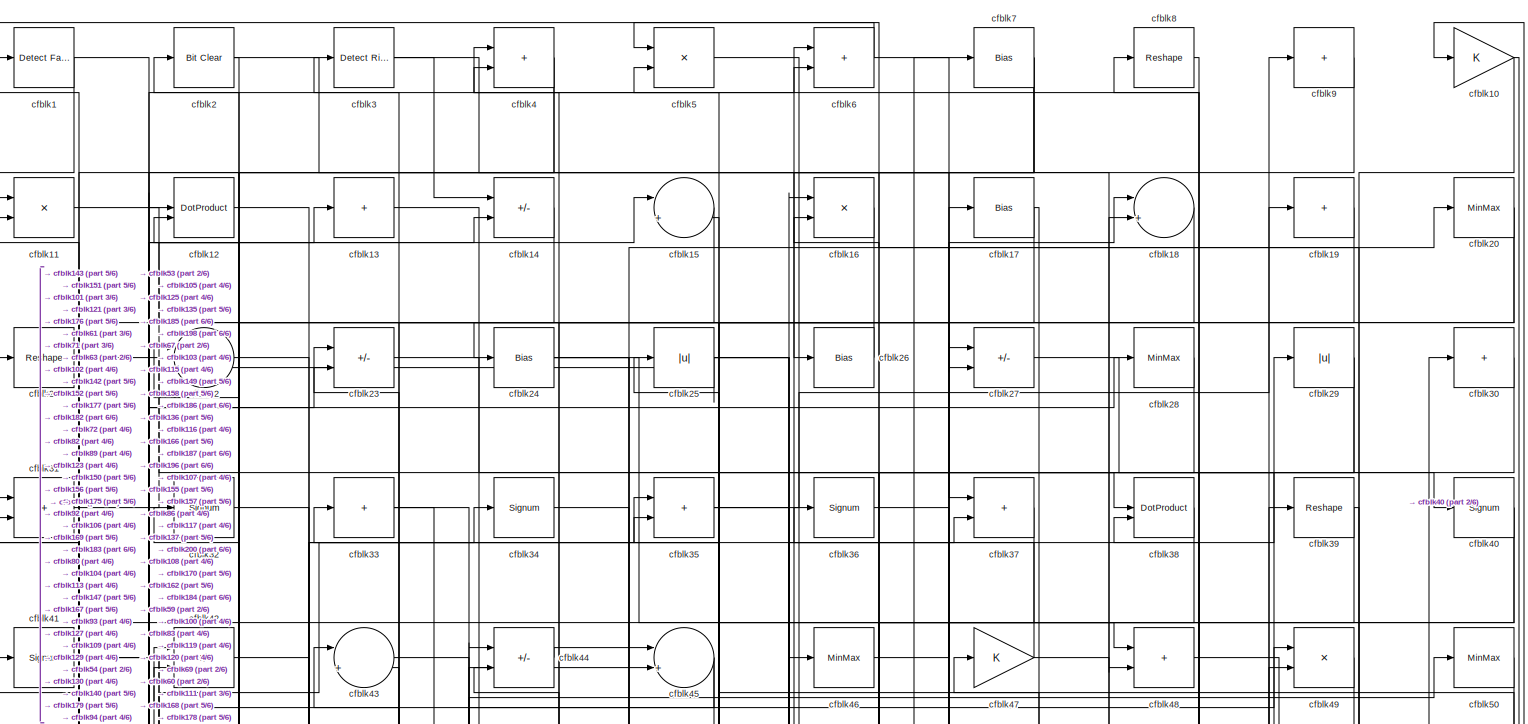
[diagram: root canvas - part 1/6, full width, top band]
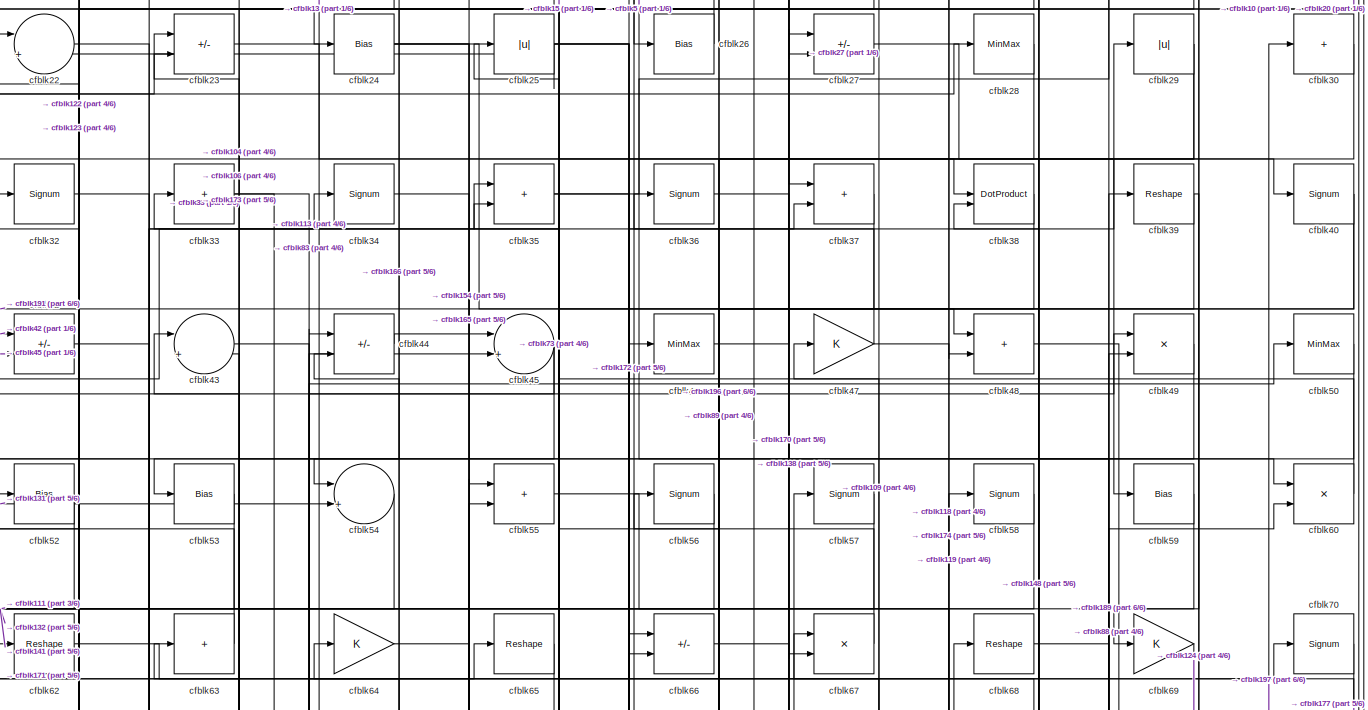
[diagram: root canvas - part 2/6, full width, top band]
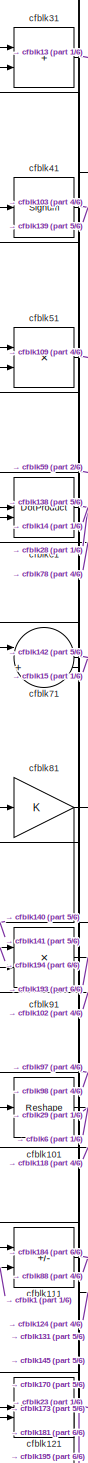
[diagram: root canvas - part 3/6, middle left region]
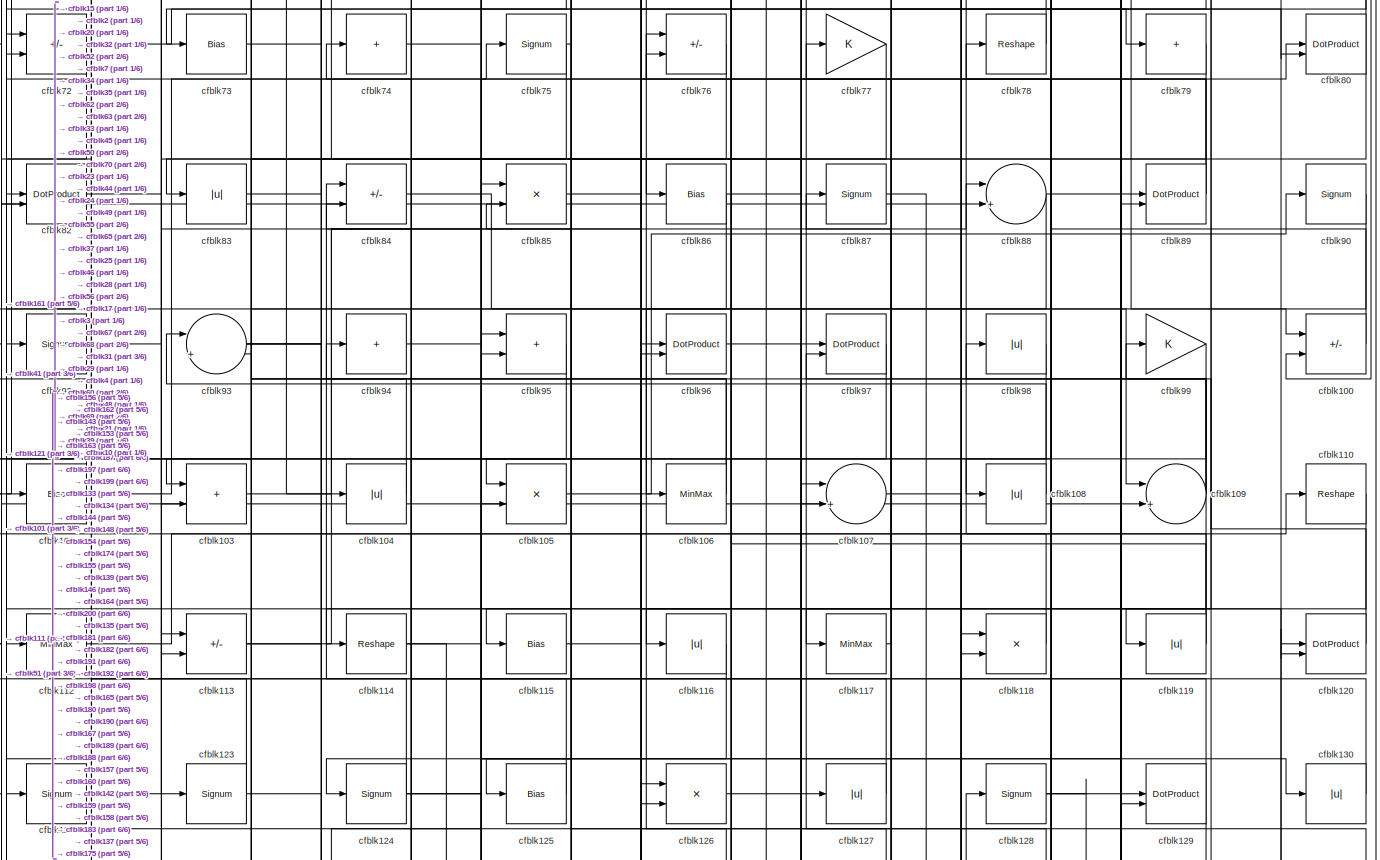
[diagram: root canvas - part 4/6, full width, middle band]
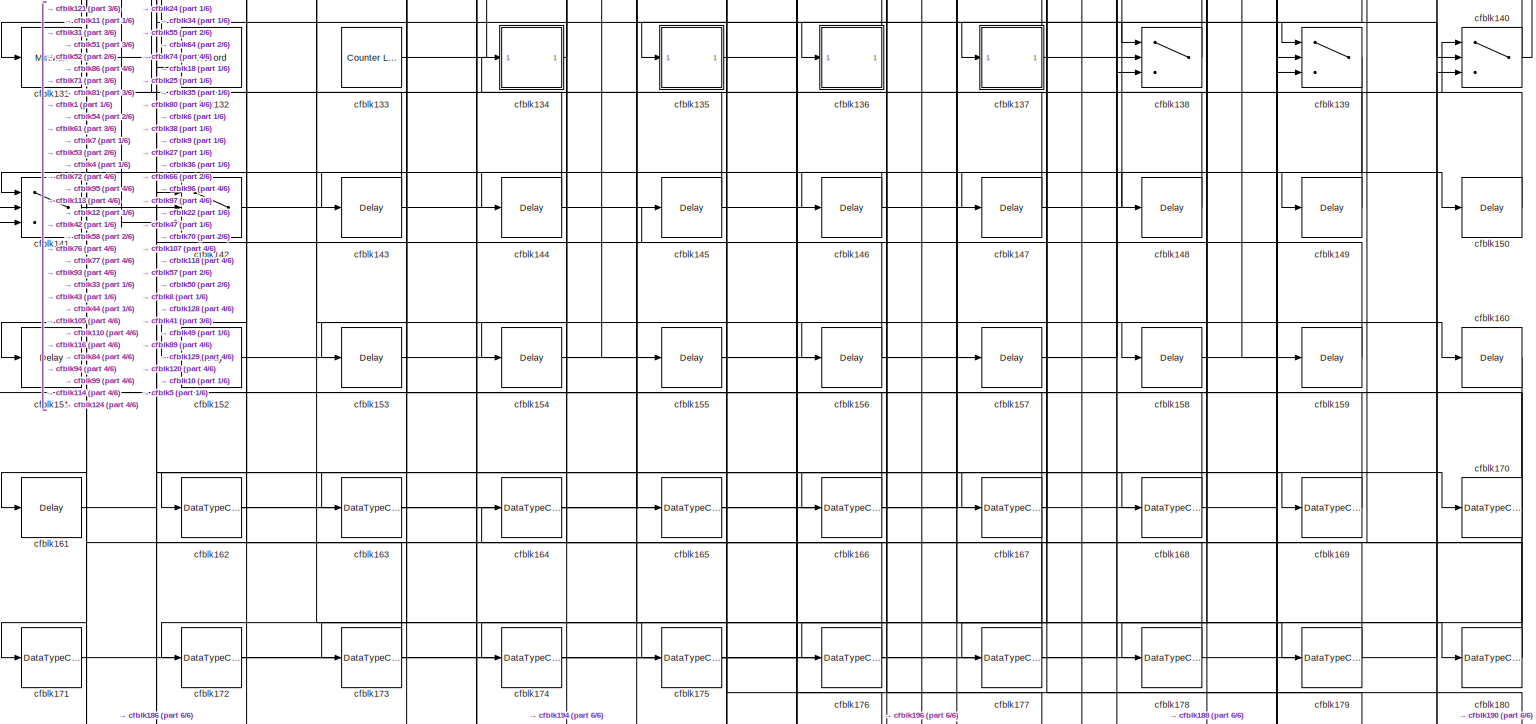
[diagram: root canvas - part 5/6, full width, bottom band]
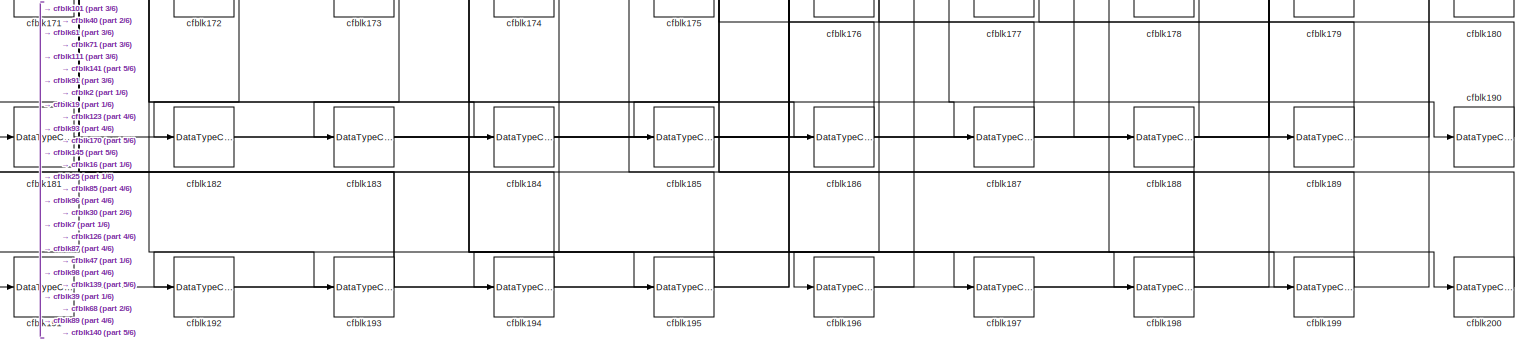
[diagram: root canvas - part 6/6, full width, bottom band]
MODEL slx_8d43ca6d4f13
KIND model
CONFIG AbsTol = auto
CONFIG EnableMultiTasking = off
CONFIG FixedStep = auto
CONFIG MaxStep = auto
CONFIG MinStep = auto
CONFIG RelTol = 1e-3
CONFIG SampleTimeConstraint = Unconstrained
CONFIG SolverName = VariableStepAuto
CONFIG StartTime = 0.0
CONFIG StopTime = 10.0
BLOCK [Reference] cfblk1  REF=hdlsllib/Logic and Bit
Operations/Detect Fall
Negative
  SourceBlock = hdlsllib/Logic and Bit\nOperations/Detect Fall\nNegative
  SourceType = Detect Fall Negative
BLOCK [Gain] cfblk10
BLOCK [Sum] cfblk100
  IconShape = rectangular
  Inputs = +-
BLOCK [Reshape] cfblk101
BLOCK [Bias] cfblk102
  Bias = 0.0
  SaturateOnIntegerOverflow = off
BLOCK [Sum] cfblk103
  IconShape = rectangular
BLOCK [Abs] cfblk104
  SaturateOnIntegerOverflow = off
BLOCK [Product] cfblk105
  Inputs = */
  RndMeth = Zero
  SaturateOnIntegerOverflow = on
BLOCK [MinMax] cfblk106
BLOCK [Sum] cfblk107
  Inputs = |++
BLOCK [Abs] cfblk108
  SaturateOnIntegerOverflow = off
BLOCK [Sum] cfblk109
  Inputs = |++
BLOCK [Product] cfblk11
  Inputs = */
  RndMeth = Zero
  SaturateOnIntegerOverflow = on
BLOCK [Reshape] cfblk110
BLOCK [Sum] cfblk111
  IconShape = rectangular
  Inputs = +-
BLOCK [MinMax] cfblk112
BLOCK [Sum] cfblk113
  IconShape = rectangular
  Inputs = +-
BLOCK [Reshape] cfblk114
BLOCK [Bias] cfblk115
  Bias = 0.0
  SaturateOnIntegerOverflow = off
BLOCK [Abs] cfblk116
  SaturateOnIntegerOverflow = off
BLOCK [MinMax] cfblk117
BLOCK [Product] cfblk118
  Inputs = */
  RndMeth = Zero
  SaturateOnIntegerOverflow = on
BLOCK [Abs] cfblk119
  SaturateOnIntegerOverflow = off
BLOCK [DotProduct] cfblk12
  OutDataTypeStr = Inherit: Inherit via internal rule
BLOCK [DotProduct] cfblk120
  OutDataTypeStr = Inherit: Inherit via internal rule
BLOCK [DotProduct] cfblk121
  OutDataTypeStr = Inherit: Inherit via internal rule
BLOCK [Signum] cfblk122
BLOCK [Signum] cfblk123
BLOCK [Signum] cfblk124
BLOCK [Bias] cfblk125
  Bias = 0.0
  SaturateOnIntegerOverflow = off
BLOCK [Product] cfblk126
  Inputs = */
  RndMeth = Zero
  SaturateOnIntegerOverflow = on
BLOCK [Abs] cfblk127
  SaturateOnIntegerOverflow = off
BLOCK [Signum] cfblk128
BLOCK [DotProduct] cfblk129
  OutDataTypeStr = Inherit: Inherit via internal rule
BLOCK [Sum] cfblk13
  IconShape = rectangular
  Inputs = +
BLOCK [Abs] cfblk130
  SaturateOnIntegerOverflow = off
BLOCK [MinMax] cfblk131
BLOCK [Record] cfblk132
  CompatibilityTag = XY
  FileSettingsInternal = {"entries":[{"content":{"excelSettings":{"content":{},"type":"Streamout.ExcelSettings"}},"type":"Streamout.FileSettingStorage","uuid":""}],"packageUris":["http:\/\/schema.mathworks.com\/mf0\/streamout_blocks\/R2020a"],"version":"1.0"}
  Layout = [1 1]
  SignalsInternal = {"entries":[{"content":{"signals":[{"content":{"blockPath":[],"dimensions":[1],"domain":"","lineColor":"#a2142f","plots":[1],"port":1,"signalID":3990,"signalName":"XY Graph:1"},"type":"RecordBlkView.Signal","uuid":""},{"content":{"blockPath":[],"dimensions":[1],"domain":"","lineColor":"#139fff","plots":[1],"port":2,"signalID":3993,"signalName":"XY Graph:2"},"type":"RecordBlkView.Signal","uuid":""}...<+146ch>
  VisualizationBindings = {"xyplotplugin":{"info":[{"series":[{"bindingParametersList":[{"parameter":"X-Axis","signalID":3990,"signalName":"XY Graph:1"},{"parameter":"Y-Axis","signalID":3993,"signalName":"XY Graph:2"}],"seriesID":61873}],"subplotID":1}]}}
  st = -1
BLOCK [Reference] cfblk133  REF=hdlsllib/Sources/Counter
Limited
  SourceBlock = hdlsllib/Sources/Counter\nLimited
  SourceType = Counter Limited
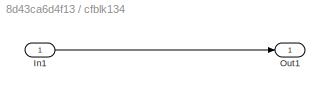
BLOCK [SubSystem] cfblk134
  LibrarySourceBlock = hdlsllib/Ports &\nSubsystems/Subsystem
BLOCK [Inport] cfblk134/In1
BLOCK [Outport] cfblk134/Out1
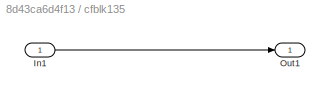
BLOCK [SubSystem] cfblk135
  LibrarySourceBlock = hdlsllib/Ports &\nSubsystems/Subsystem
BLOCK [Inport] cfblk135/In1
BLOCK [Outport] cfblk135/Out1
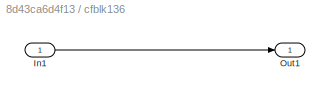
BLOCK [SubSystem] cfblk136
  LibrarySourceBlock = hdlsllib/Ports &\nSubsystems/Subsystem
BLOCK [Inport] cfblk136/In1
BLOCK [Outport] cfblk136/Out1
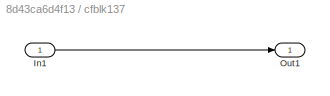
BLOCK [SubSystem] cfblk137
  LibrarySourceBlock = hdlsllib/Ports &\nSubsystems/Subsystem
BLOCK [Inport] cfblk137/In1
BLOCK [Outport] cfblk137/Out1
BLOCK [Switch] cfblk138
  InputSameDT = off
  SaturateOnIntegerOverflow = off
BLOCK [Switch] cfblk139
  InputSameDT = off
  SaturateOnIntegerOverflow = off
BLOCK [Sum] cfblk14
  IconShape = rectangular
  Inputs = +-
BLOCK [Switch] cfblk140
  InputSameDT = off
  SaturateOnIntegerOverflow = off
BLOCK [Switch] cfblk141
  InputSameDT = off
  SaturateOnIntegerOverflow = off
BLOCK [Switch] cfblk142
  InputSameDT = off
  SaturateOnIntegerOverflow = off
BLOCK [Delay] cfblk143
  InputPortMap = u0
  SampleTime = 1
BLOCK [Delay] cfblk144
  InputPortMap = u0
  SampleTime = 1
BLOCK [Delay] cfblk145
  InputPortMap = u0
  SampleTime = 1
BLOCK [Delay] cfblk146
  InputPortMap = u0
  SampleTime = 1
BLOCK [Delay] cfblk147
  InputPortMap = u0
  SampleTime = 1
BLOCK [Delay] cfblk148
  InputPortMap = u0
  SampleTime = 1
BLOCK [Delay] cfblk149
  InputPortMap = u0
  SampleTime = 1
BLOCK [Sum] cfblk15
  Inputs = |++
BLOCK [Delay] cfblk150
  InputPortMap = u0
  SampleTime = 1
BLOCK [Delay] cfblk151
  InputPortMap = u0
  SampleTime = 1
BLOCK [Delay] cfblk152
  InputPortMap = u0
  SampleTime = 1
BLOCK [Delay] cfblk153
  InputPortMap = u0
  SampleTime = 1
BLOCK [Delay] cfblk154
  InputPortMap = u0
  SampleTime = 1
BLOCK [Delay] cfblk155
  InputPortMap = u0
  SampleTime = 1
BLOCK [Delay] cfblk156
  InputPortMap = u0
  SampleTime = 1
BLOCK [Delay] cfblk157
  InputPortMap = u0
  SampleTime = 1
BLOCK [Delay] cfblk158
  InputPortMap = u0
  SampleTime = 1
BLOCK [Delay] cfblk159
  InputPortMap = u0
  SampleTime = 1
BLOCK [Product] cfblk16
  Inputs = */
  RndMeth = Zero
  SaturateOnIntegerOverflow = on
BLOCK [Delay] cfblk160
  InputPortMap = u0
  SampleTime = 1
BLOCK [Delay] cfblk161
  InputPortMap = u0
  SampleTime = 1
BLOCK [DataTypeConversion] cfblk162
  RndMeth = Floor
  SaturateOnIntegerOverflow = off
BLOCK [DataTypeConversion] cfblk163
  OutDataTypeStr = uint8
  RndMeth = Floor
  SaturateOnIntegerOverflow = off
BLOCK [DataTypeConversion] cfblk164
  OutDataTypeStr = uint8
  RndMeth = Floor
  SaturateOnIntegerOverflow = off
BLOCK [DataTypeConversion] cfblk165
  OutDataTypeStr = uint8
  RndMeth = Floor
  SaturateOnIntegerOverflow = off
BLOCK [DataTypeConversion] cfblk166
  OutDataTypeStr = uint8
  RndMeth = Floor
  SaturateOnIntegerOverflow = off
BLOCK [DataTypeConversion] cfblk167
  RndMeth = Floor
  SaturateOnIntegerOverflow = off
BLOCK [DataTypeConversion] cfblk168
  OutDataTypeStr = uint8
  RndMeth = Floor
  SaturateOnIntegerOverflow = off
BLOCK [DataTypeConversion] cfblk169
  OutDataTypeStr = uint8
  RndMeth = Floor
  SaturateOnIntegerOverflow = off
BLOCK [Bias] cfblk17
  Bias = 0.0
  SaturateOnIntegerOverflow = off
BLOCK [DataTypeConversion] cfblk170
  RndMeth = Floor
  SaturateOnIntegerOverflow = off
BLOCK [DataTypeConversion] cfblk171
  OutDataTypeStr = uint8
  RndMeth = Floor
  SaturateOnIntegerOverflow = off
BLOCK [DataTypeConversion] cfblk172
  OutDataTypeStr = uint8
  RndMeth = Floor
  SaturateOnIntegerOverflow = off
BLOCK [DataTypeConversion] cfblk173
  OutDataTypeStr = uint8
  RndMeth = Floor
  SaturateOnIntegerOverflow = off
BLOCK [DataTypeConversion] cfblk174
  OutDataTypeStr = uint8
  RndMeth = Floor
  SaturateOnIntegerOverflow = off
BLOCK [DataTypeConversion] cfblk175
  OutDataTypeStr = uint8
  RndMeth = Floor
  SaturateOnIntegerOverflow = off
BLOCK [DataTypeConversion] cfblk176
  OutDataTypeStr = uint8
  RndMeth = Floor
  SaturateOnIntegerOverflow = off
BLOCK [DataTypeConversion] cfblk177
  OutDataTypeStr = uint8
  RndMeth = Floor
  SaturateOnIntegerOverflow = off
BLOCK [DataTypeConversion] cfblk178
  OutDataTypeStr = uint8
  RndMeth = Floor
  SaturateOnIntegerOverflow = off
BLOCK [DataTypeConversion] cfblk179
  OutDataTypeStr = uint8
  RndMeth = Floor
  SaturateOnIntegerOverflow = off
BLOCK [Sum] cfblk18
  Inputs = |++
BLOCK [DataTypeConversion] cfblk180
  RndMeth = Floor
  SaturateOnIntegerOverflow = off
BLOCK [DataTypeConversion] cfblk181
  OutDataTypeStr = uint8
  RndMeth = Floor
  SaturateOnIntegerOverflow = off
BLOCK [DataTypeConversion] cfblk182
  OutDataTypeStr = uint8
  RndMeth = Floor
  SaturateOnIntegerOverflow = off
BLOCK [DataTypeConversion] cfblk183
  RndMeth = Floor
  SaturateOnIntegerOverflow = off
BLOCK [DataTypeConversion] cfblk184
  OutDataTypeStr = uint8
  RndMeth = Floor
  SaturateOnIntegerOverflow = off
BLOCK [DataTypeConversion] cfblk185
  OutDataTypeStr = uint8
  RndMeth = Floor
  SaturateOnIntegerOverflow = off
BLOCK [DataTypeConversion] cfblk186
  OutDataTypeStr = uint8
  RndMeth = Floor
  SaturateOnIntegerOverflow = off
BLOCK [DataTypeConversion] cfblk187
  OutDataTypeStr = uint8
  RndMeth = Floor
  SaturateOnIntegerOverflow = off
BLOCK [DataTypeConversion] cfblk188
  RndMeth = Floor
  SaturateOnIntegerOverflow = off
BLOCK [DataTypeConversion] cfblk189
  OutDataTypeStr = uint8
  RndMeth = Floor
  SaturateOnIntegerOverflow = off
BLOCK [Sum] cfblk19
  IconShape = rectangular
  Inputs = +
BLOCK [DataTypeConversion] cfblk190
  OutDataTypeStr = uint8
  RndMeth = Floor
  SaturateOnIntegerOverflow = off
BLOCK [DataTypeConversion] cfblk191
  OutDataTypeStr = uint8
  RndMeth = Floor
  SaturateOnIntegerOverflow = off
BLOCK [DataTypeConversion] cfblk192
  OutDataTypeStr = uint8
  RndMeth = Floor
  SaturateOnIntegerOverflow = off
BLOCK [DataTypeConversion] cfblk193
  RndMeth = Floor
  SaturateOnIntegerOverflow = off
BLOCK [DataTypeConversion] cfblk194
  OutDataTypeStr = uint8
  RndMeth = Floor
  SaturateOnIntegerOverflow = off
BLOCK [DataTypeConversion] cfblk195
  OutDataTypeStr = uint8
  RndMeth = Floor
  SaturateOnIntegerOverflow = off
BLOCK [DataTypeConversion] cfblk196
  RndMeth = Floor
  SaturateOnIntegerOverflow = off
BLOCK [DataTypeConversion] cfblk197
  OutDataTypeStr = uint8
  RndMeth = Floor
  SaturateOnIntegerOverflow = off
BLOCK [DataTypeConversion] cfblk198
  OutDataTypeStr = uint8
  RndMeth = Floor
  SaturateOnIntegerOverflow = off
BLOCK [DataTypeConversion] cfblk199
  OutDataTypeStr = uint8
  RndMeth = Floor
  SaturateOnIntegerOverflow = off
BLOCK [Reference] cfblk2  REF=simulink/Logic and Bit
Operations/Bit Clear
  LibrarySourceBlock = hdlsllib/Logic and Bit\nOperations/Bit Clear
  SourceBlock = simulink/Logic and Bit\nOperations/Bit Clear
  SourceType = Bit Clear
BLOCK [MinMax] cfblk20
BLOCK [DataTypeConversion] cfblk200
  OutDataTypeStr = uint8
  RndMeth = Floor
  SaturateOnIntegerOverflow = off
BLOCK [Reshape] cfblk21
BLOCK [Sum] cfblk22
  Inputs = |++
BLOCK [Sum] cfblk23
  IconShape = rectangular
  Inputs = +-
BLOCK [Bias] cfblk24
  Bias = 0.0
  SaturateOnIntegerOverflow = off
BLOCK [Abs] cfblk25
  SaturateOnIntegerOverflow = off
BLOCK [Bias] cfblk26
  Bias = 0.0
  SaturateOnIntegerOverflow = off
BLOCK [Sum] cfblk27
  IconShape = rectangular
  Inputs = +-
BLOCK [MinMax] cfblk28
BLOCK [Abs] cfblk29
  SaturateOnIntegerOverflow = off
BLOCK [Reference] cfblk3  REF=hdlsllib/Logic and Bit
Operations/Detect Rise
Positive
  SourceBlock = hdlsllib/Logic and Bit\nOperations/Detect Rise\nPositive
  SourceType = Detect Rise Positive
BLOCK [Sum] cfblk30
  IconShape = rectangular
  Inputs = +
BLOCK [Sum] cfblk31
  IconShape = rectangular
BLOCK [Signum] cfblk32
BLOCK [Sum] cfblk33
  IconShape = rectangular
  Inputs = +
BLOCK [Signum] cfblk34
BLOCK [Sum] cfblk35
  IconShape = rectangular
BLOCK [Signum] cfblk36
BLOCK [Sum] cfblk37
  IconShape = rectangular
BLOCK [DotProduct] cfblk38
  OutDataTypeStr = Inherit: Inherit via internal rule
BLOCK [Reshape] cfblk39
BLOCK [Sum] cfblk4
  IconShape = rectangular
BLOCK [Signum] cfblk40
BLOCK [Signum] cfblk41
BLOCK [Sum] cfblk42
  IconShape = rectangular
  Inputs = +-
BLOCK [Sum] cfblk43
  Inputs = |++
BLOCK [Sum] cfblk44
  IconShape = rectangular
  Inputs = +-
BLOCK [Sum] cfblk45
  Inputs = |++
BLOCK [MinMax] cfblk46
BLOCK [Gain] cfblk47
BLOCK [Sum] cfblk48
  IconShape = rectangular
BLOCK [Product] cfblk49
  Inputs = */
  RndMeth = Zero
  SaturateOnIntegerOverflow = on
BLOCK [Product] cfblk5
  Inputs = */
  RndMeth = Zero
  SaturateOnIntegerOverflow = on
BLOCK [MinMax] cfblk50
BLOCK [Product] cfblk51
  Inputs = */
  RndMeth = Zero
  SaturateOnIntegerOverflow = on
BLOCK [Bias] cfblk52
  Bias = 0.0
  SaturateOnIntegerOverflow = off
BLOCK [Bias] cfblk53
  Bias = 0.0
  SaturateOnIntegerOverflow = off
BLOCK [Sum] cfblk54
  Inputs = |++
BLOCK [Sum] cfblk55
  IconShape = rectangular
BLOCK [Signum] cfblk56
BLOCK [Signum] cfblk57
BLOCK [Signum] cfblk58
BLOCK [Bias] cfblk59
  Bias = 0.0
  SaturateOnIntegerOverflow = off
BLOCK [Sum] cfblk6
  IconShape = rectangular
BLOCK [Product] cfblk60
  Inputs = */
  RndMeth = Zero
  SaturateOnIntegerOverflow = on
BLOCK [DotProduct] cfblk61
  OutDataTypeStr = Inherit: Inherit via internal rule
BLOCK [Reshape] cfblk62
BLOCK [Sum] cfblk63
  IconShape = rectangular
  Inputs = +
BLOCK [Gain] cfblk64
BLOCK [Reshape] cfblk65
BLOCK [Sum] cfblk66
  IconShape = rectangular
  Inputs = +-
BLOCK [Product] cfblk67
  Inputs = */
  RndMeth = Zero
  SaturateOnIntegerOverflow = on
BLOCK [Reshape] cfblk68
BLOCK [Gain] cfblk69
BLOCK [Bias] cfblk7
  Bias = 0.0
  SaturateOnIntegerOverflow = off
BLOCK [Signum] cfblk70
BLOCK [Sum] cfblk71
  Inputs = |++
BLOCK [Sum] cfblk72
  IconShape = rectangular
  Inputs = +-
BLOCK [Bias] cfblk73
  Bias = 0.0
  SaturateOnIntegerOverflow = off
BLOCK [Sum] cfblk74
  IconShape = rectangular
  Inputs = +
BLOCK [Signum] cfblk75
BLOCK [Sum] cfblk76
  IconShape = rectangular
  Inputs = +-
BLOCK [Gain] cfblk77
BLOCK [Reshape] cfblk78
BLOCK [Sum] cfblk79
  IconShape = rectangular
  Inputs = +
BLOCK [Reshape] cfblk8
BLOCK [DotProduct] cfblk80
  OutDataTypeStr = Inherit: Inherit via internal rule
BLOCK [Gain] cfblk81
BLOCK [DotProduct] cfblk82
  OutDataTypeStr = Inherit: Inherit via internal rule
BLOCK [Abs] cfblk83
  SaturateOnIntegerOverflow = off
BLOCK [Sum] cfblk84
  IconShape = rectangular
  Inputs = +-
BLOCK [Product] cfblk85
  Inputs = */
  RndMeth = Zero
  SaturateOnIntegerOverflow = on
BLOCK [Bias] cfblk86
  Bias = 0.0
  SaturateOnIntegerOverflow = off
BLOCK [Signum] cfblk87
BLOCK [Sum] cfblk88
  Inputs = |++
BLOCK [DotProduct] cfblk89
  OutDataTypeStr = Inherit: Inherit via internal rule
BLOCK [Sum] cfblk9
  IconShape = rectangular
  Inputs = +
BLOCK [Signum] cfblk90
BLOCK [Product] cfblk91
  Inputs = */
  RndMeth = Zero
  SaturateOnIntegerOverflow = on
BLOCK [Signum] cfblk92
BLOCK [Sum] cfblk93
  Inputs = |++
BLOCK [Sum] cfblk94
  IconShape = rectangular
  Inputs = +
BLOCK [Sum] cfblk95
  IconShape = rectangular
BLOCK [DotProduct] cfblk96
  OutDataTypeStr = Inherit: Inherit via internal rule
BLOCK [DotProduct] cfblk97
  OutDataTypeStr = Inherit: Inherit via internal rule
BLOCK [Abs] cfblk98
  SaturateOnIntegerOverflow = off
BLOCK [Gain] cfblk99
LINE cfblk100:1 -> cfblk4:1
NET cfblk101:1 -> cfblk181:1, cfblk29:1, cfblk6:2
NET cfblk102:1 -> cfblk41:1, cfblk75:1
LINE cfblk103:1 -> cfblk46:1
LINE cfblk104:1 -> cfblk62:1
LINE cfblk105:1 -> cfblk90:1
NET cfblk106:1 -> cfblk3:1, cfblk63:1
LINE cfblk107:1 -> cfblk160:1
LINE cfblk108:1 -> cfblk93:1
NET cfblk109:1 -> cfblk112:1, cfblk44:2, cfblk67:1, cfblk78:1
NET cfblk10:1 -> cfblk100:2, cfblk69:1
LINE cfblk110:1 -> cfblk144:1
NET cfblk111:1 -> cfblk184:1, cfblk88:2
LINE cfblk112:1 -> cfblk110:1
NET cfblk113:1 -> cfblk49:1, cfblk55:1
NET cfblk114:1 -> cfblk129:2, cfblk155:1
LINE cfblk115:1 -> cfblk37:2
LINE cfblk116:1 -> cfblk174:1
LINE cfblk117:1 -> cfblk77:1
LINE cfblk118:1 -> cfblk101:1
NET cfblk119:1 -> cfblk68:1, cfblk76:1
LINE cfblk11:1 -> cfblk27:2
LINE cfblk120:1 -> cfblk21:1
NET cfblk121:1 -> cfblk131:1, cfblk23:2
LINE cfblk122:1 -> cfblk88:1
NET cfblk123:1 -> cfblk187:1, cfblk52:1
NET cfblk124:1 -> cfblk139:1, cfblk51:1, cfblk76:2
LINE cfblk125:1 -> cfblk74:1
LINE cfblk126:1 -> cfblk190:1
LINE cfblk127:1 -> cfblk84:1
NET cfblk128:1 -> cfblk129:1, cfblk159:1
NET cfblk129:1 -> cfblk137:1, cfblk4:2
LINE cfblk12:1 -> cfblk175:1
LINE cfblk130:1 -> cfblk2:1
NET cfblk131:1 -> cfblk31:2, cfblk54:2
LINE cfblk133:1 -> cfblk105:2
LINE cfblk134/In1:1 -> cfblk134/Out1:1
LINE cfblk134:1 -> cfblk94:1
LINE cfblk135/In1:1 -> cfblk135/Out1:1
LINE cfblk135:1 -> cfblk80:1
LINE cfblk136/In1:1 -> cfblk136/Out1:1
LINE cfblk136:1 -> cfblk6:1
LINE cfblk137/In1:1 -> cfblk137/Out1:1
NET cfblk137:1 -> cfblk18:2, cfblk22:1
LINE cfblk138:1 -> cfblk57:1
LINE cfblk139:1 -> cfblk176:1
LINE cfblk13:1 -> cfblk40:1
NET cfblk140:1 -> cfblk10:1, cfblk5:2
LINE cfblk141:1 -> cfblk186:1
LINE cfblk142:1 -> cfblk128:1
LINE cfblk143:1 -> cfblk1:1
LINE cfblk144:1 -> cfblk113:1
LINE cfblk145:1 -> cfblk61:2
LINE cfblk146:1 -> cfblk141:1
LINE cfblk147:1 -> cfblk35:2
LINE cfblk148:1 -> cfblk84:2
LINE cfblk149:1 -> cfblk138:2
LINE cfblk14:1 -> cfblk71:1
LINE cfblk150:1 -> cfblk44:1
LINE cfblk151:1 -> cfblk11:2
LINE cfblk152:1 -> cfblk138:3
LINE cfblk153:1 -> cfblk93:2
LINE cfblk154:1 -> cfblk55:2
LINE cfblk155:1 -> cfblk27:1
LINE cfblk156:1 -> cfblk72:2
LINE cfblk157:1 -> cfblk118:1
LINE cfblk158:1 -> cfblk89:2
LINE cfblk159:1 -> cfblk142:1
LINE cfblk15:1 -> cfblk92:1
LINE cfblk160:1 -> cfblk164:1
LINE cfblk161:1 -> cfblk169:1
NET cfblk162:1 -> cfblk107:1, cfblk49:2
LINE cfblk163:1 -> cfblk95:1
LINE cfblk164:1 -> cfblk95:2
LINE cfblk165:1 -> cfblk97:1
LINE cfblk166:1 -> cfblk64:1
NET cfblk167:1 -> cfblk11:1, cfblk172:1, cfblk97:2
LINE cfblk168:1 -> cfblk43:1
LINE cfblk169:1 -> cfblk43:2
LINE cfblk16:1 -> cfblk185:1
NET cfblk170:1 -> cfblk194:1, cfblk38:2, cfblk51:2
LINE cfblk171:1 -> cfblk66:1
LINE cfblk172:1 -> cfblk66:2
LINE cfblk173:1 -> cfblk81:1
LINE cfblk174:1 -> cfblk58:1
LINE cfblk175:1 -> cfblk120:1
LINE cfblk176:1 -> cfblk12:1
LINE cfblk177:1 -> cfblk12:2
LINE cfblk178:1 -> cfblk47:1
LINE cfblk179:1 -> cfblk8:1
NET cfblk17:1 -> cfblk102:1, cfblk117:1
NET cfblk180:1 -> cfblk134:1, cfblk99:1
LINE cfblk181:1 -> cfblk96:1
LINE cfblk182:1 -> cfblk96:2
NET cfblk183:1 -> cfblk195:1, cfblk89:1
LINE cfblk184:1 -> cfblk19:1
LINE cfblk185:1 -> cfblk39:1
LINE cfblk186:1 -> cfblk16:1
LINE cfblk187:1 -> cfblk16:2
NET cfblk188:1 -> cfblk140:3, cfblk192:1, cfblk98:1
LINE cfblk189:1 -> cfblk87:1
LINE cfblk18:1 -> cfblk135:1
LINE cfblk190:1 -> cfblk145:1
LINE cfblk191:1 -> cfblk126:1
LINE cfblk192:1 -> cfblk126:2
NET cfblk193:1 -> cfblk61:1, cfblk71:2
LINE cfblk194:1 -> cfblk91:1
LINE cfblk195:1 -> cfblk91:2
NET cfblk196:1 -> cfblk139:3, cfblk7:1
LINE cfblk197:1 -> cfblk30:1
LINE cfblk198:1 -> cfblk25:1
LINE cfblk199:1 -> cfblk85:1
LINE cfblk19:1 -> cfblk183:1
NET cfblk1:1 -> cfblk111:2, cfblk168:1
LINE cfblk200:1 -> cfblk85:2
NET cfblk20:1 -> cfblk54:1, cfblk72:1
LINE cfblk21:1 -> cfblk38:1
LINE cfblk22:1 -> cfblk156:1
LINE cfblk23:1 -> cfblk127:1
NET cfblk24:1 -> cfblk130:1, cfblk140:2, cfblk48:1
NET cfblk25:1 -> cfblk120:2, cfblk158:1, cfblk22:2, cfblk80:2
LINE cfblk26:1 -> cfblk24:1
LINE cfblk27:1 -> cfblk59:1
LINE cfblk28:1 -> cfblk116:1
NET cfblk29:1 -> cfblk105:1, cfblk108:1
NET cfblk2:1 -> cfblk182:1, cfblk48:2
LINE cfblk30:1 -> cfblk196:1
LINE cfblk31:1 -> cfblk13:1
LINE cfblk32:1 -> cfblk123:1
NET cfblk33:1 -> cfblk104:1, cfblk147:1
LINE cfblk34:1 -> cfblk179:1
NET cfblk35:1 -> cfblk149:1, cfblk9:1
LINE cfblk36:1 -> cfblk157:1
LINE cfblk37:1 -> cfblk125:1
LINE cfblk38:1 -> cfblk166:1
NET cfblk39:1 -> cfblk119:1, cfblk86:1
NET cfblk3:1 -> cfblk107:2, cfblk14:1
NET cfblk40:1 -> cfblk191:1, cfblk67:2
NET cfblk41:1 -> cfblk103:2, cfblk139:2
LINE cfblk42:1 -> cfblk150:1
LINE cfblk43:1 -> cfblk167:1
LINE cfblk44:1 -> cfblk45:1
NET cfblk45:1 -> cfblk42:2, cfblk53:1
LINE cfblk46:1 -> cfblk18:1
NET cfblk47:1 -> cfblk200:1, cfblk36:1
LINE cfblk48:1 -> cfblk100:1
LINE cfblk49:1 -> cfblk83:1
NET cfblk4:1 -> cfblk151:1, cfblk152:1
LINE cfblk50:1 -> cfblk148:1
LINE cfblk51:1 -> cfblk109:2
LINE cfblk52:1 -> cfblk171:1
LINE cfblk53:1 -> cfblk132:1
LINE cfblk54:1 -> cfblk132:2
LINE cfblk55:1 -> cfblk118:2
LINE cfblk56:1 -> cfblk122:1
LINE cfblk57:1 -> cfblk141:2
LINE cfblk58:1 -> cfblk173:1
LINE cfblk59:1 -> cfblk111:1
LINE cfblk5:1 -> cfblk60:1
LINE cfblk60:1 -> cfblk33:1
NET cfblk61:1 -> cfblk138:1, cfblk14:2, cfblk28:1
LINE cfblk62:1 -> cfblk65:1
LINE cfblk63:1 -> cfblk42:1
LINE cfblk64:1 -> cfblk165:1
LINE cfblk65:1 -> cfblk73:1
LINE cfblk66:1 -> cfblk170:1
LINE cfblk67:1 -> cfblk15:2
LINE cfblk68:1 -> cfblk189:1
LINE cfblk69:1 -> cfblk124:1
NET cfblk6:1 -> cfblk37:1, cfblk5:1
LINE cfblk70:1 -> cfblk177:1
NET cfblk71:1 -> cfblk142:3, cfblk15:1
NET cfblk72:1 -> cfblk79:1, cfblk82:2
LINE cfblk73:1 -> cfblk50:1
LINE cfblk74:1 -> cfblk146:1
NET cfblk75:1 -> cfblk113:2, cfblk115:1
LINE cfblk76:1 -> cfblk153:1
LINE cfblk77:1 -> cfblk163:1
LINE cfblk78:1 -> cfblk31:1
LINE cfblk79:1 -> cfblk114:1
NET cfblk7:1 -> cfblk142:2, cfblk26:1, cfblk82:1
NET cfblk80:1 -> cfblk143:1, cfblk23:1
NET cfblk81:1 -> cfblk140:1, cfblk141:3
LINE cfblk82:1 -> cfblk34:1
LINE cfblk83:1 -> cfblk70:1
LINE cfblk84:1 -> cfblk109:1
LINE cfblk85:1 -> cfblk198:1
NET cfblk86:1 -> cfblk161:1, cfblk17:1
LINE cfblk87:1 -> cfblk188:1
NET cfblk88:1 -> cfblk106:1, cfblk60:2
NET cfblk89:1 -> cfblk32:1, cfblk56:1
LINE cfblk8:1 -> cfblk178:1
LINE cfblk90:1 -> cfblk103:1
LINE cfblk91:1 -> cfblk193:1
LINE cfblk92:1 -> cfblk35:1
NET cfblk93:1 -> cfblk197:1, cfblk199:1, cfblk45:2
LINE cfblk94:1 -> cfblk20:1
LINE cfblk95:1 -> cfblk162:1
LINE cfblk96:1 -> cfblk180:1
LINE cfblk97:1 -> cfblk121:1
LINE cfblk98:1 -> cfblk121:2
LINE cfblk99:1 -> cfblk154:1
LINE cfblk9:1 -> cfblk136:1
note: NET lines group one-source signal fan-out (src -> all destinations, sorted); 1:1 wires keep LINE
